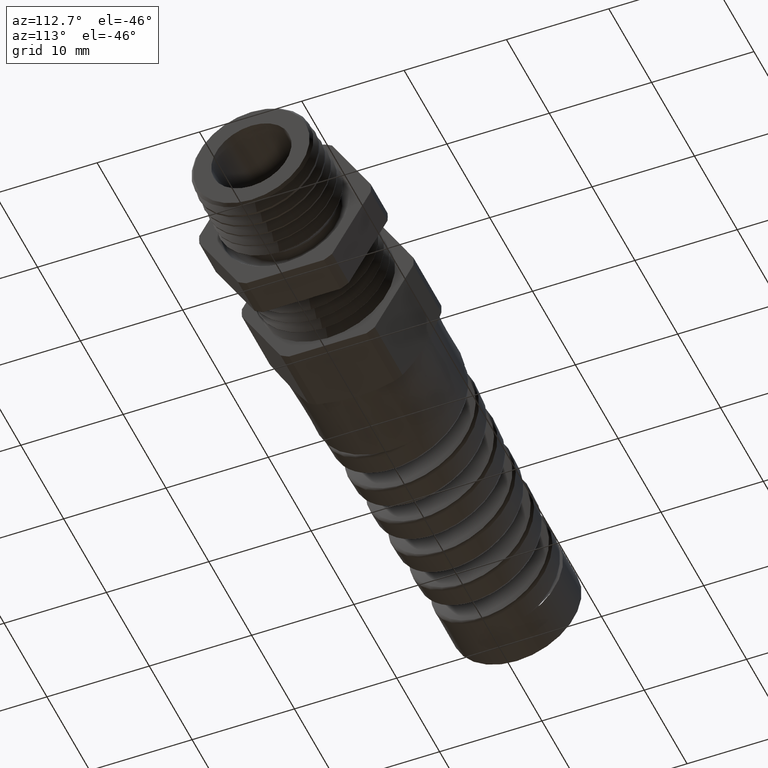
[diagram: clean part render]
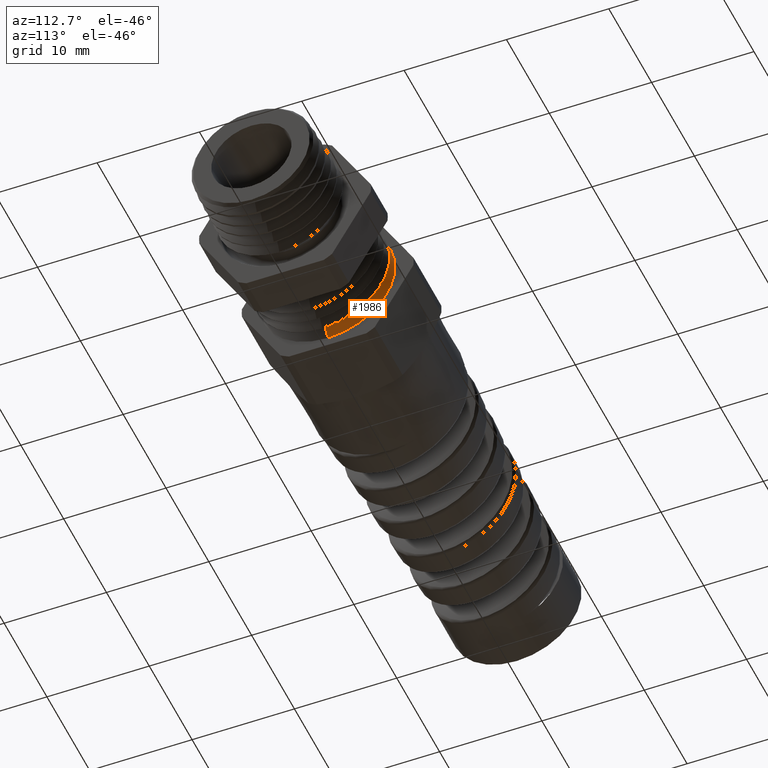
[diagram: same view with one face highlighted and labeled with its STEP entity id]
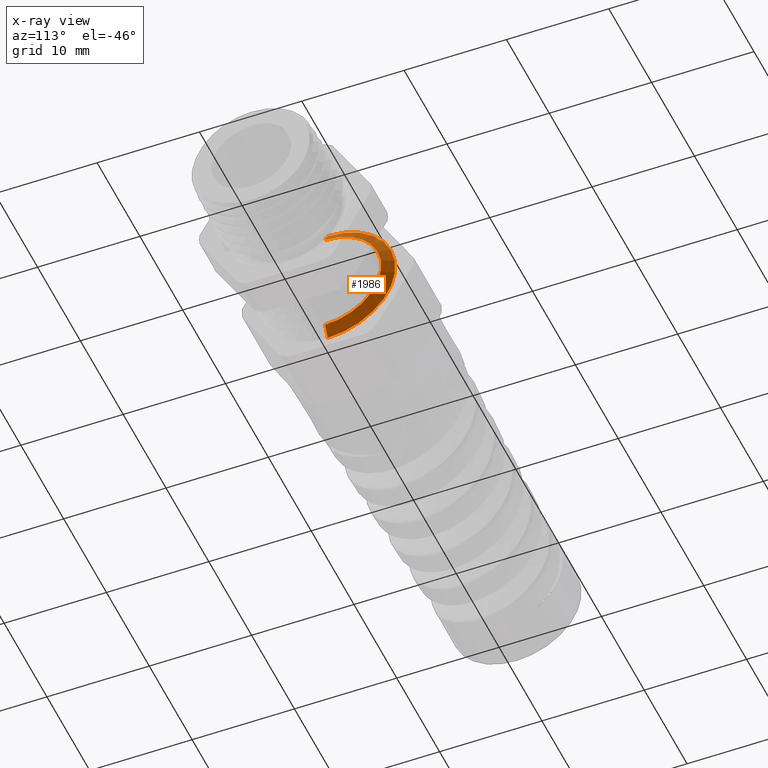
[diagram: x-ray of the same camera — body ghosted, the highlighted face saturated]
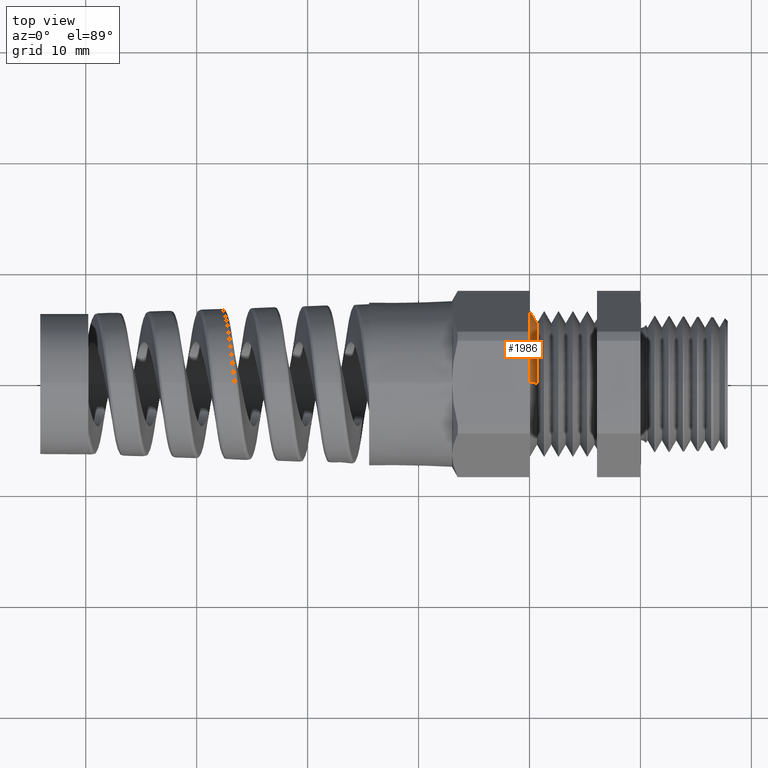
[diagram: same view with one face highlighted and labeled with its STEP entity id]
A machine part, auxiliary view. The second image highlights one B-rep face of the part: STEP entity #1986.
The next image is the same camera in x-ray: the body ghosted, the highlighted face saturated — about 13% of this face is hidden behind the body in this view.
A second angle (top view) of the same face is appended — the face is thin or edge-on in the first view.
In plain terms, the highlighted conical surface has half-angle 60 deg.
Its self-contained STEP definition (entity closure, byte-faithful):
#1572 = ORIENTED_EDGE ( 'NONE', *, *, #1705, .T. ) ;
#1573 = VERTEX_POINT ( 'NONE', #6280 ) ;
#1703 = EDGE_CURVE ( 'NONE', #1711, #1706, #7143, .T. ) ;
#1704 = ORIENTED_EDGE ( 'NONE', *, *, #1703, .F. ) ;
#1705 = EDGE_CURVE ( 'NONE', #1573, #1706, #7136, .T. ) ;
#1706 = VERTEX_POINT ( 'NONE', #7131 ) ;
#1707 = VERTEX_POINT ( 'NONE', #7130 ) ;
#1709 = ORIENTED_EDGE ( 'NONE', *, *, #1710, .T. ) ;
#1710 = EDGE_CURVE ( 'NONE', #1707, #1573, #7129, .T. ) ;
#1711 = VERTEX_POINT ( 'NONE', #7125 ) ;
#1986 = ADVANCED_FACE ( 'NONE', ( #7568 ), #7566, .T. ) ;
#2002 = EDGE_CURVE ( 'NONE', #1707, #1711, #7601, .T. ) ;
#2005 = ORIENTED_EDGE ( 'NONE', *, *, #2002, .F. ) ;
#2007 = EDGE_LOOP ( 'NONE', ( #2005, #1709, #1572, #1704 ) ) ;
#6280 = CARTESIAN_POINT ( 'NONE',  ( -0.3920833333333332800, 3.180407737385675900E-017, -0.2596999999999999900 ) ) ;
#7125 = CARTESIAN_POINT ( 'NONE',  ( -0.3670833449895862200, 2.915264051327779200E-017, 0.2163987499999999500 ) ) ;
#7126 = DIRECTION ( 'NONE',  ( -0.4999999999999960000, 1.060575238724909600E-016, -0.8660254037844409300 ) ) ;
#7127 = VECTOR ( 'NONE', #7126, 39.37007874015748100 ) ;
#7128 = CARTESIAN_POINT ( 'NONE',  ( -0.3920833333333332800, 3.180407737385675900E-017, -0.2596999999999999900 ) ) ;
#7129 = LINE ( 'NONE', #7128, #7127 ) ;
#7130 = CARTESIAN_POINT ( 'NONE',  ( -0.3670833449895862200, 0.0000000000000000000, -0.2163987499999999500 ) ) ;
#7131 = CARTESIAN_POINT ( 'NONE',  ( -0.3920833333333332800, 0.0000000000000000000, 0.2596999999999999900 ) ) ;
#7132 = DIRECTION ( 'NONE',  ( 0.0000000000000000000, 0.0000000000000000000, -1.000000000000000000 ) ) ;
#7133 = DIRECTION ( 'NONE',  ( 1.000000000000000000, 0.0000000000000000000, 0.0000000000000000000 ) ) ;
#7134 = CARTESIAN_POINT ( 'NONE',  ( -0.3920833333333332800, 0.0000000000000000000, 0.0000000000000000000 ) ) ;
#7135 = AXIS2_PLACEMENT_3D ( 'NONE', #7134, #7133, #7132 ) ;
#7136 = CIRCLE ( 'NONE', #7135, 0.2596999999999999900 ) ;
#7137 = DIRECTION ( 'NONE',  ( -0.4999999999999960000, 0.0000000000000000000, 0.8660254037844409300 ) ) ;
#7138 = VECTOR ( 'NONE', #7137, 39.37007874015748100 ) ;
#7139 = CARTESIAN_POINT ( 'NONE',  ( -0.3920833333333332800, 0.0000000000000000000, 0.2596999999999999900 ) ) ;
#7143 = LINE ( 'NONE', #7139, #7138 ) ;
#7563 = DIRECTION ( 'NONE',  ( 0.0000000000000000000, 0.0000000000000000000, 1.000000000000000000 ) ) ;
#7564 = DIRECTION ( 'NONE',  ( -1.000000000000000000, 0.0000000000000000000, 0.0000000000000000000 ) ) ;
#7565 = AXIS2_PLACEMENT_3D ( 'NONE', #7567, #7564, #7563 ) ;
#7566 = CONICAL_SURFACE ( 'NONE', #7565, 0.2596999999999999900, 1.047197551196602300 ) ;
#7567 = CARTESIAN_POINT ( 'NONE',  ( -0.3920833333333332800, 0.0000000000000000000, 0.0000000000000000000 ) ) ;
#7568 = FACE_OUTER_BOUND ( 'NONE', #2007, .T. ) ;
#7597 = DIRECTION ( 'NONE',  ( 0.0000000000000000000, 0.0000000000000000000, -1.000000000000000000 ) ) ;
#7598 = DIRECTION ( 'NONE',  ( 1.000000000000000000, 0.0000000000000000000, 0.0000000000000000000 ) ) ;
#7599 = CARTESIAN_POINT ( 'NONE',  ( -0.3670833449895862200, 0.0000000000000000000, 0.0000000000000000000 ) ) ;
#7600 = AXIS2_PLACEMENT_3D ( 'NONE', #7599, #7598, #7597 ) ;
#7601 = CIRCLE ( 'NONE', #7600, 0.2163987499999999500 ) ;